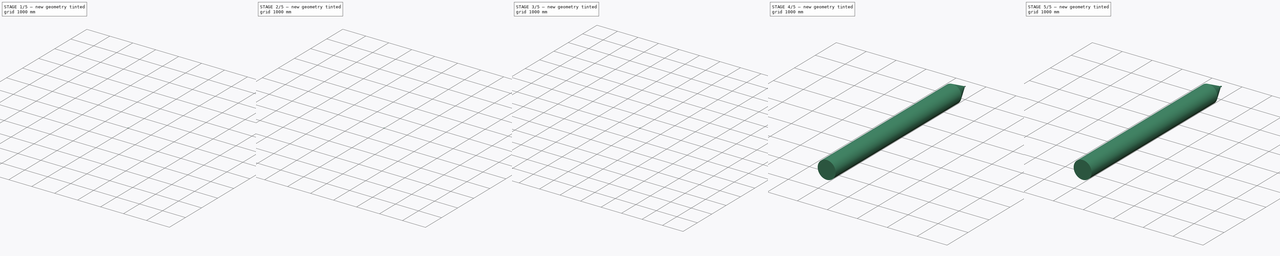
[diagram: build sequence overview — one tinted view per stage of 5, left to right]
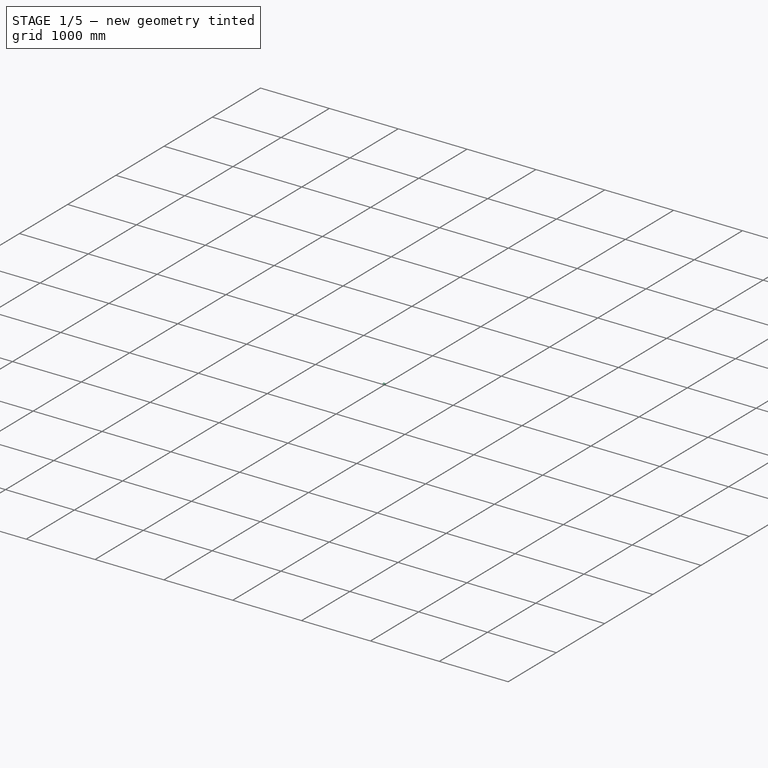
[diagram: stage 1 of 5 — iso view after this stage's code; geometry added in this stage tinted green]
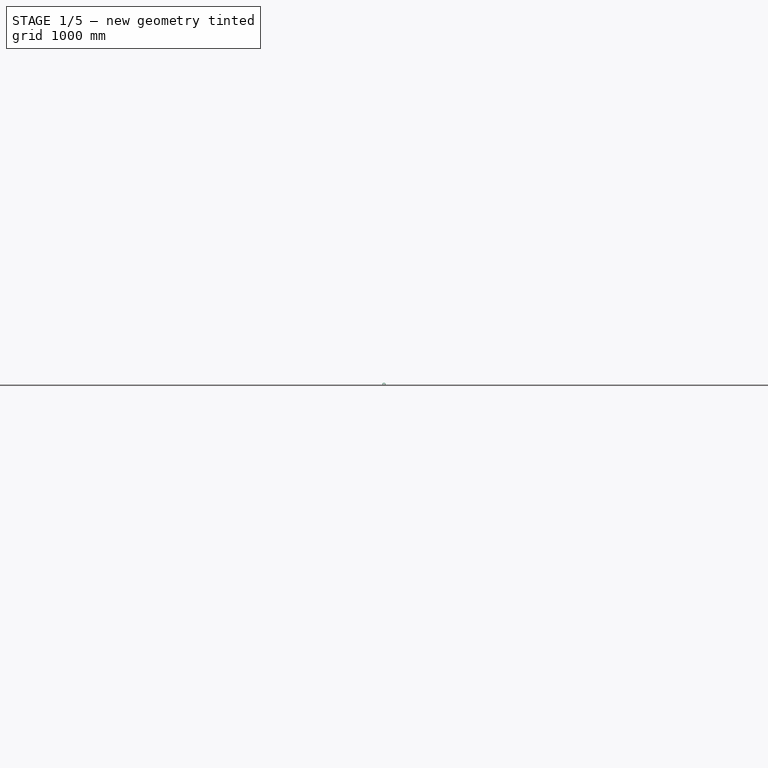
[diagram: stage 1 of 5 — front view after this stage's code; geometry added in this stage tinted green]
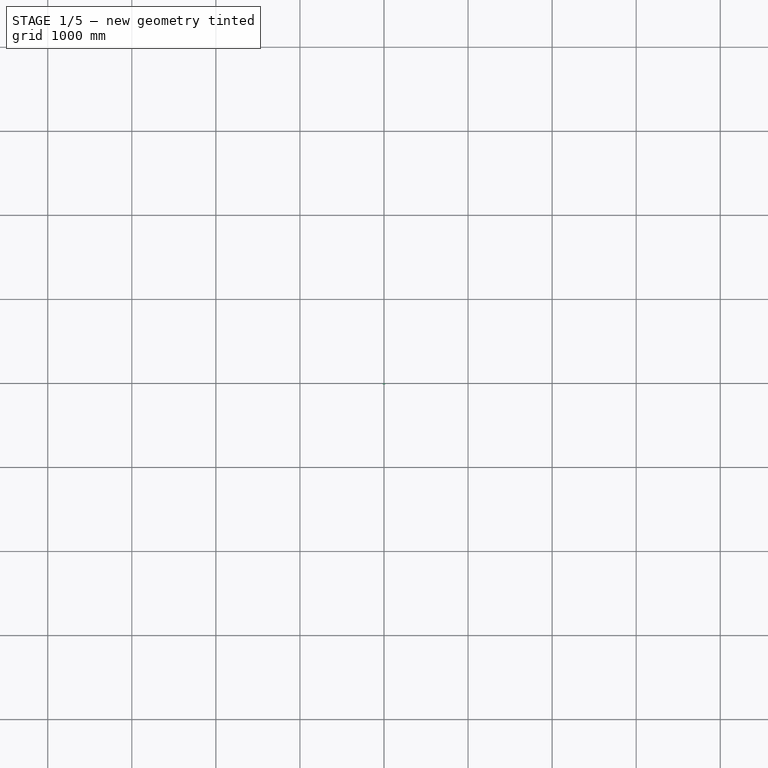
[diagram: stage 1 of 5 — top view after this stage's code; geometry added in this stage tinted green]
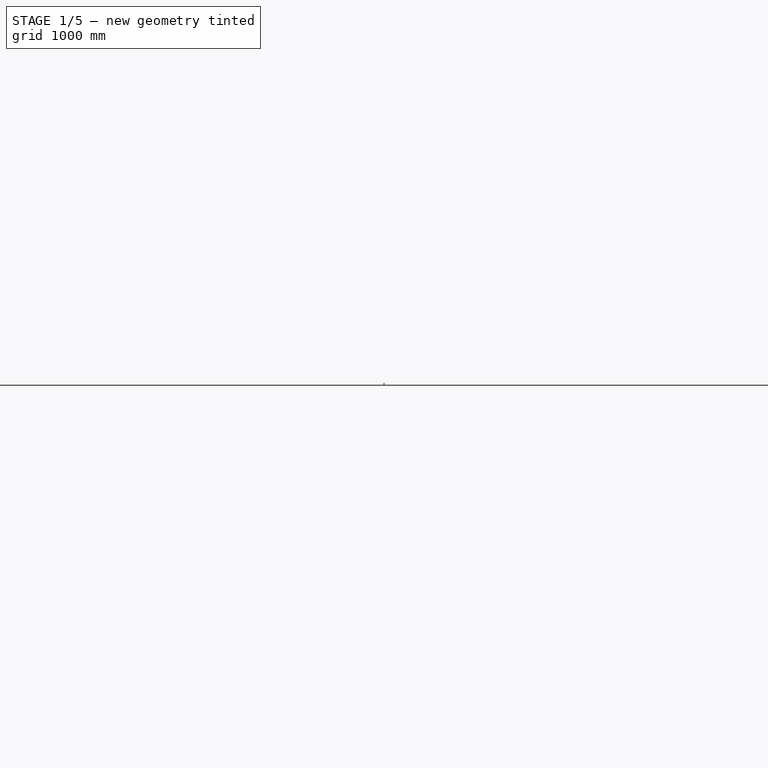
[diagram: stage 1 of 5 — right view after this stage's code; geometry added in this stage tinted green]
FCSTD DOCUMENT  (FreeCAD 1.0R39109 (Git))
Label: capteur_ultrason_maxbotix
License: All rights reserved
LicenseURL: http://en.wikipedia.org/wiki/All_rights_reserved
objects: Sketcher::SketchObject×24, PartDesign::Pocket×15, PartDesign::Body×10, PartDesign::Mirrored×7, Part::FeaturePython×6, PartDesign::Pad×5, PartDesign::MultiTransform×5, App::Part×4, PartDesign::FeatureBase×4, PartDesign::Fillet×3, App::Link×2, PartDesign::PolarPattern×2, PartDesign::Revolution×2, App::DocumentObjectGroup×2, Part::Feature×1, Part::Part2DObjectPython×1, Part::Extrusion×1, Part::RuledSurface×1
note: 179 computed .brp shape members not serialized (recipe doc carries the construction recipe); baked Part::Feature solids carry a one-line shape summary decoded from their .brp

FEATURE [Part::Feature] Part__Feature  label="Maxbotix_us_sensor"
  shape: bbox 20 x 15.25 x 22.2 mm, 42 faces (baked)
FEATURE [Part::Part2DObjectPython] Line  # Draft 2D object (typed FeaturePython)
  Area = 0
  ChamferSize = 0
  Closed = false
  End = (-31,-3.95,-18)
  FilletRadius = 0
  Length = 63
  MakeFace = true
  Placement = pos=(30.6949,-3.33905,3e-15) rot=(0.707107,0.707107,0;3.14159rad)
  Points = (2) [(-0.610949,1.30514,18),(-0.610949,-61.6949,18)]
  Start = (32,-3.95,-18)
  Subdivisions = 0
FEATURE [Part::Extrusion] Extrude
  Base = -> Line
  Dir = (0,0,1)
  DirMode = 0
  FaceMakerClass = Part::FaceMakerBullseye
  FaceMakerMode = 3
  LengthFwd = 40
  LengthRev = 0
  Solid = false
  Symmetric = false
FEATURE [App::Link] Link001  label="anneau001"
  LinkPlacement = pos=(-12,7.62876e-07,0) rot=(0,0,1;3.14159rad)
  LinkedObject = -> Body005
  Placement = pos=(-12,7.62876e-07,0) rot=(0,0,1;3.14159rad)
FEATURE [PartDesign::Mirrored] Mirrored
  MirrorPlane = -> YZ_Plane005
  Placement = pos=(0,0,0) rot=(1,1,1;2.0944rad)
  Suppressed = false
  TransformMode = 0
FEATURE [PartDesign::Mirrored] Mirrored003
  MirrorPlane = -> YZ_Plane009
  Placement = pos=(0,0,0) rot=(1,1,1;2.0944rad)
  Suppressed = false
  TransformMode = 0
FEATURE [PartDesign::Mirrored] Mirrored004
  MirrorPlane = -> YZ_Plane005
  Placement = pos=(0,0,0) rot=(1,1,1;2.0944rad)
  Suppressed = false
  TransformMode = 0
FEATURE [PartDesign::Mirrored] Mirrored005
  MirrorPlane = -> YZ_Plane007
  Placement = pos=(0,0,0) rot=(1,0,0;1.5708rad)
  Suppressed = false
  TransformMode = 0
FEATURE [PartDesign::PolarPattern] PolarPattern
  Angle = 180
  Axis = -> X_Axis005
  Mode = 0
  Occurrences = 13
  Offset = 120
  Placement = pos=(0,0,0) rot=(1,1,1;2.0944rad)
  Suppressed = false
  TransformMode = 0
FEATURE [Sketcher::SketchObject] Sketch004
  ArcFitTolerance = 0
  AttachmentSupport = -> [YZ_Plane005]
  FullyConstrained = true
  MakeInternals = false
  MapMode = 5
  Placement = pos=(0,0,0) rot=(0.57735,0.57735,0.57735;2.0944rad)
  sketch-geometry (2):
    g0: ArcOfCircle CenterX=0 CenterY=0 CenterZ=0 NormalX=0 NormalY=0 NormalZ=1 AngleXU=0 Radius=13 StartAngle=1.5708 EndAngle=4.71239
    g1: LineSegment StartX=-2.4e-15 StartY=13 StartZ=0 EndX=-2.4e-15 EndY=-13 EndZ=0
  constraints (6):
    c: Diameter(g0) = 26
    c: Coincident(g0,g1)
    c: PointOnObject(g0,g-2)
    c: Vertical(g1)
    c: Coincident(g1,g0)
    c: Coincident(g0,g-1)
FEATURE [PartDesign::Pad] Pad002
  Direction = (1,0,0)
  Length = 12
  Length2 = 10
  Placement = pos=(0,0,0) rot=(1,1,1;2.0944rad)
  Profile = -> Sketch004
  ReferenceAxis = -> Sketch004 [N_Axis]
  Suppressed = false
  Type = 0
FEATURE [Sketcher::SketchObject] Sketch005
  ArcFitTolerance = 0
  AttachmentOffset = pos=(0,0,12) rot=(0,0,1;0rad)
  AttachmentSupport = -> [YZ_Plane005]
  FullyConstrained = true
  MakeInternals = false
  MapMode = 5
  Placement = pos=(12,0,0) rot=(0.57735,0.57735,0.57735;2.0944rad)
  expr: .AttachmentOffset.Base.z = <<Pad002>>.Length
  sketch-geometry (2):
    g0: ArcOfCircle CenterX=0 CenterY=0 CenterZ=0 NormalX=0 NormalY=0 NormalZ=1 AngleXU=0 Radius=8.5 StartAngle=1.5708 EndAngle=4.71239
    g1: LineSegment StartX=1.0367e-12 StartY=8.5 StartZ=0 EndX=1.0367e-12 EndY=-8.5 EndZ=0
  constraints (6):
    c: Coincident(g0,g-1)
    c: Vertical(g1)
    c: Coincident(g0,g1)
    c: Coincident(g0,g1)
    c: PointOnObject(g0,g-2)
    c: Diameter(g0) = 17
FEATURE [PartDesign::Pad] Pad003
  BaseFeature = -> Pad002
  Direction = (1,0,0)
  Length = 5
  Length2 = 10
  Placement = pos=(0,0,0) rot=(1,1,1;2.0944rad)
  Profile = -> Sketch005
  ReferenceAxis = -> Sketch005 [N_Axis]
  Suppressed = false
  Type = 0
FEATURE [Sketcher::SketchObject] Sketch006
  ArcFitTolerance = 0
  AttachmentOffset = pos=(0,1,0) rot=(0,0,1;0rad)
  AttachmentSupport = -> [YZ_Plane005]
  FullyConstrained = true
  MakeInternals = false
  MapMode = 5
  Placement = pos=(0,0,1) rot=(0.57735,-0.57735,-0.57735;2.0944rad)
  expr: Constraints[10] = 10 + 0.3
  expr: Constraints[9] = 1.65 + 0.3 + 2
  sketch-geometry (4):
    g0: LineSegment StartX=0 StartY=10.3 StartZ=0 EndX=3.95 EndY=10.3 EndZ=0
    g1: LineSegment StartX=3.95 StartY=10.3 StartZ=0 EndX=3.95 EndY=-10.3 EndZ=0
    g2: LineSegment StartX=3.95 StartY=-10.3 StartZ=0 EndX=0 EndY=-10.3 EndZ=0
    g3: LineSegment StartX=0 StartY=-10.3 StartZ=0 EndX=0 EndY=10.3 EndZ=0
  constraints (11):
    c: Coincident(g0,g1)
    c: Coincident(g1,g2)
    c: Coincident(g2,g3)
    c: Coincident(g3,g0)
    c: Horizontal(g0)
    c: Horizontal(g2)
    c: Vertical(g1)
    c: Vertical(g3)
    c: Symmetric(g0,g2,g-1)
    c: DistanceX(g0) = 3.95
    c: DistanceY(g0) = 10.3
FEATURE [PartDesign::Pocket] Pocket001
  BaseFeature = -> Pad003
  Direction = (1,0,0)
  Length = 11.4
  Length2 = 5
  Placement = pos=(0,0,0) rot=(1,1,1;2.0944rad)
  Profile = -> Sketch006
  ReferenceAxis = -> Sketch006 [N_Axis]
  Suppressed = false
  Type = 0
FEATURE [Sketcher::SketchObject] Sketch007
  ArcFitTolerance = 0
  AttachmentSupport = -> [XZ_Plane005]
  FullyConstrained = true
  MakeInternals = false
  MapMode = 5
  Placement = pos=(0,0,0) rot=(1,0,0;1.5708rad)
  sketch-geometry (1):
    g0: Circle CenterX=0 CenterY=0 CenterZ=0 NormalX=0 NormalY=0 NormalZ=1 AngleXU=0 Radius=8.45
  constraints (2):
    c: Coincident(g0,g-1)
    c: Diameter(g0) = 16.9
FEATURE [PartDesign::Pocket] Pocket002
  BaseFeature = -> Pocket001
  Direction = (0,1,-2e-16)
  Length = 5
  Length2 = 5
  Placement = pos=(0,0,0) rot=(1,1,1;2.0944rad)
  Profile = -> Sketch007
  ReferenceAxis = -> Sketch007 [N_Axis]
  Reversed = true
  Suppressed = false
  Type = 1
FEATURE [Sketcher::SketchObject] Sketch009
  ArcFitTolerance = 0
  AttachmentSupport = -> [YZ_Plane005]
  FullyConstrained = true
  MakeInternals = false
  MapMode = 5
  Placement = pos=(0,0,0) rot=(0.57735,-0.57735,-0.57735;2.0944rad)
  expr: Constraints[3] = 1.52 + 2
  sketch-geometry (2):
    g0: ArcOfCircle CenterX=3.52 CenterY=9.7 CenterZ=0 NormalX=0 NormalY=0 NormalZ=1 AngleXU=0 Radius=1.6 StartAngle=4.71239 EndAngle=7.85398
    g1: LineSegment StartX=3.52 StartY=11.3 StartZ=0 EndX=3.52 EndY=8.1 EndZ=0
  constraints (7):
    c: Coincident(g1,g0)
    c: Coincident(g1,g0)
    c: Vertical(g1)
    c: DistanceX(g0) = 3.52
    c: DistanceY(g0) = 9.7
    c: Diameter(g0) = 3.2
    c: Vertical(g0,g0)
FEATURE [PartDesign::Pocket] Pocket004
  BaseFeature = -> Pocket002
  Direction = (1,0,0)
  Length = 11
  Length2 = 5
  Placement = pos=(0,0,0) rot=(1,1,1;2.0944rad)
  Profile = -> Sketch009
  ReferenceAxis = -> Sketch009 [N_Axis]
  Suppressed = false
  Type = 0
FEATURE [PartDesign::MultiTransform] MultiTransform
  BaseFeature = -> Pocket004
  Originals = -> [Pad002,Pad003,Pocket001,Pocket002,Pocket004]
  Placement = pos=(0,0,0) rot=(1,1,1;2.0944rad)
  Refine = true
  Suppressed = false
  TransformMode = 0
  Transformations = -> [Mirrored]
FEATURE [Sketcher::SketchObject] Sketch016
  ArcFitTolerance = 0
  AttachmentSupport = -> [XZ_Plane007]
  FullyConstrained = true
  MakeInternals = false
  MapMode = 5
  Placement = pos=(0,0,0) rot=(0,0.707107,0.707107;3.14159rad)
  sketch-geometry (6):
    g0: LineSegment StartX=-9.8 StartY=8.5 StartZ=0 EndX=0 EndY=8.5 EndZ=0
    g1: LineSegment StartX=0 StartY=8.5 StartZ=0 EndX=0 EndY=13 EndZ=0
    g2: LineSegment StartX=-6 StartY=13 StartZ=0 EndX=0 EndY=13 EndZ=0
    g3: LineSegment StartX=-9.8 StartY=11 StartZ=0 EndX=-6 EndY=11 EndZ=0
    g4: ArcOfCircle CenterX=-6 CenterY=12 CenterZ=0 NormalX=0 NormalY=0 NormalZ=1 AngleXU=0 Radius=1 StartAngle=4.71239 EndAngle=7.85398
    g5: ArcOfCircle CenterX=-9.8 CenterY=9.75 CenterZ=0 NormalX=0 NormalY=0 NormalZ=1 AngleXU=0 Radius=1.25 StartAngle=1.5708 EndAngle=4.71239
  constraints (18):
    c: Coincident(g0,g1)
    c: Horizontal(g0)
    c: Vertical(g1)
    c: PointOnObject(g1,g-2)
    c: Horizontal(g2)
    c: Coincident(g1,g2)
    c: DistanceY(g1) = 13
    c: DistanceX(g0,g0) = 9.8
    c: Horizontal(g3)
    c: Coincident(g4,g2)
    c: Tangent(g4,g3) = -1.5708
    c: Vertical(g4,g2)
    c: Diameter(g4) = 2
    c: DistanceX(g2,g2) = 6
    c: Coincident(g5,g0)
    c: Tangent(g5,g3) = 1.5708
    c: Vertical(g5,g0)
    c: Diameter(g5) = 2.5
FEATURE [Sketcher::SketchObject] Sketch020
  ArcFitTolerance = 0
  AttachmentOffset = pos=(0,0,-17) rot=(0,0,1;0rad)
  AttachmentSupport = -> [YZ_Plane005]
  FullyConstrained = true
  MakeInternals = false
  MapMode = 5
  Placement = pos=(-17,0,0) rot=(0.57735,0.57735,0.57735;2.0944rad)
  sketch-geometry (6):
    g0: LineSegment [constr] StartX=0 StartY=0 StartZ=0 EndX=0 EndY=6.5 EndZ=0
    g1: LineSegment StartX=0.3 StartY=8.5 StartZ=0 EndX=0.3 EndY=6.5 EndZ=0
    g2: LineSegment StartX=0.3 StartY=6.5 StartZ=0 EndX=-0.3 EndY=6.5 EndZ=0
    g3: LineSegment StartX=-0.3 StartY=6.5 StartZ=0 EndX=-0.3 EndY=8.5 EndZ=0
    g4: ArcOfCircle CenterX=0 CenterY=0 CenterZ=0 NormalX=0 NormalY=0 NormalZ=1 AngleXU=0 Radius=8.50529 StartAngle=1.53552 EndAngle=1.60608
    g5: LineSegment [constr] StartX=0.3 StartY=8.5 StartZ=0 EndX=-0.3 EndY=8.5 EndZ=0
  constraints (16):
    c: Coincident(g0,g-1)
    c: Coincident(g1,g2)
    c: Coincident(g2,g3)
    c: Coincident(g4,g3)
    c: Coincident(g4,g1)
    c: Perpendicular(g0,g2)
    c: Symmetric(g1,g2,g0)
    c: Perpendicular(g2,g3)
    c: Parallel(g1,g3)
    c: Coincident(g5,g1)
    c: Coincident(g5,g3)
    c: Coincident(g4,g0)
    c: Distance(g2) = 0.6
    c: Distance(g1) = 2
    c: Distance(g0) = 6.5
    c: Vertical(g0)
FEATURE [PartDesign::Pocket] Pocket008
  BaseFeature = -> MultiTransform
  Direction = (-1,0,0)
  Length = 0.3
  Length2 = 5
  Placement = pos=(0,0,0) rot=(1,1,1;2.0944rad)
  Profile = -> Sketch020
  ReferenceAxis = -> Sketch020 [N_Axis]
  Reversed = true
  Suppressed = false
  Type = 0
FEATURE [PartDesign::MultiTransform] MultiTransform003
  BaseFeature = -> Pocket008
  Originals = -> [Pocket008]
  Placement = pos=(0,0,0) rot=(1,1,1;2.0944rad)
  Suppressed = false
  TransformMode = 0
  Transformations = -> [PolarPattern,Mirrored004]
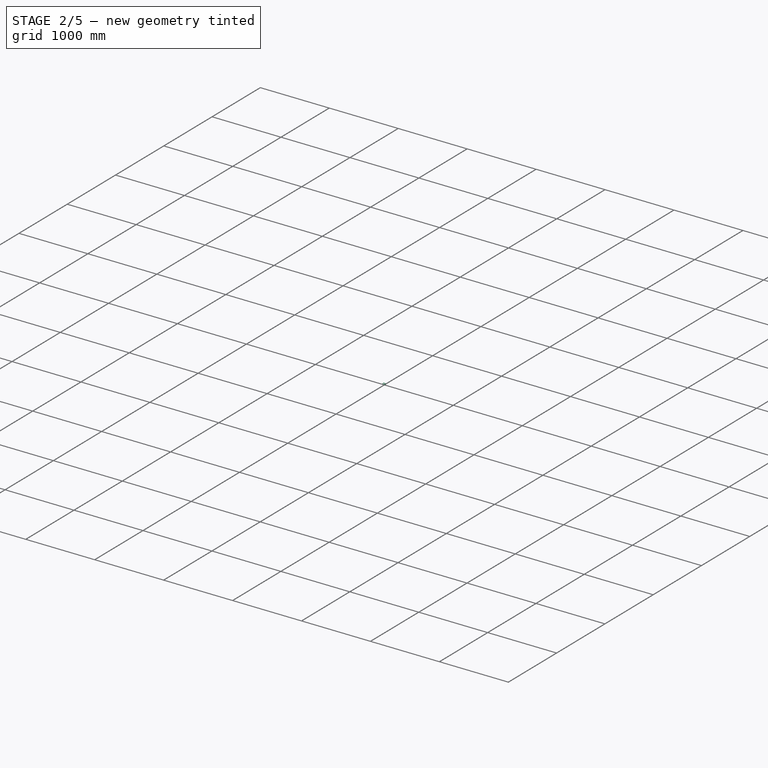
[diagram: stage 2 of 5 — iso view after this stage's code; geometry added in this stage tinted green]
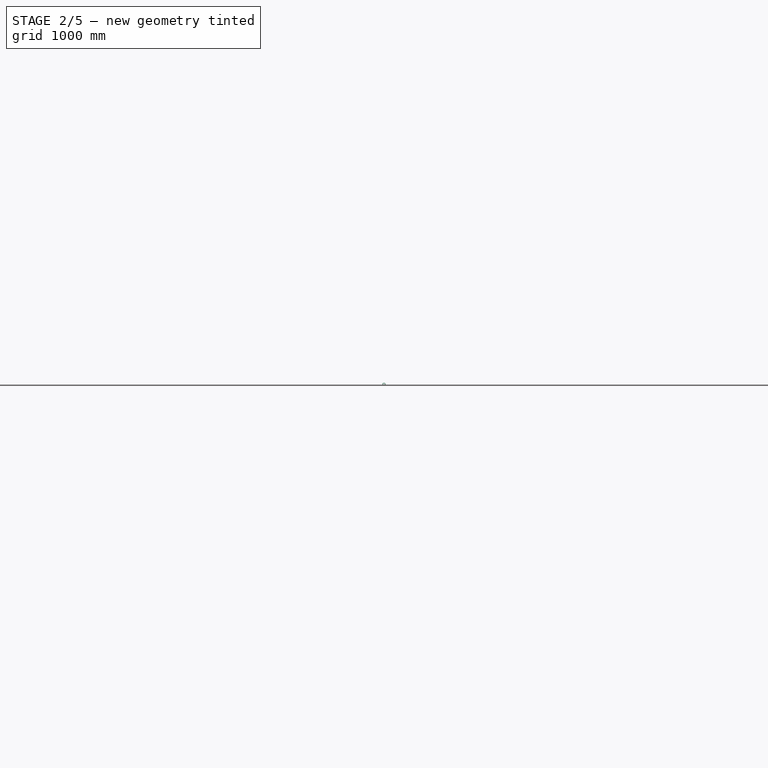
[diagram: stage 2 of 5 — front view after this stage's code; geometry added in this stage tinted green]
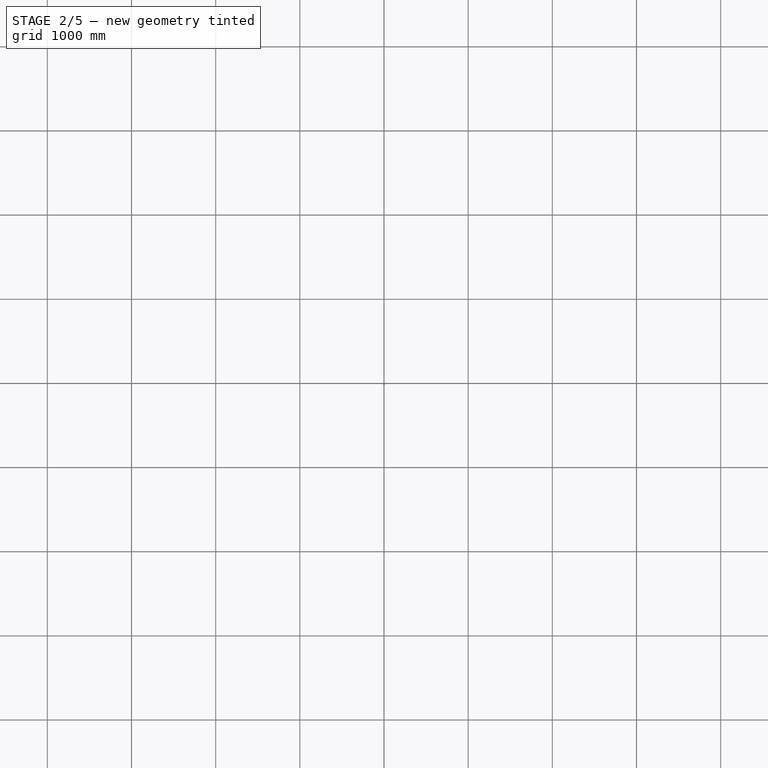
[diagram: stage 2 of 5 — top view after this stage's code; geometry added in this stage tinted green]
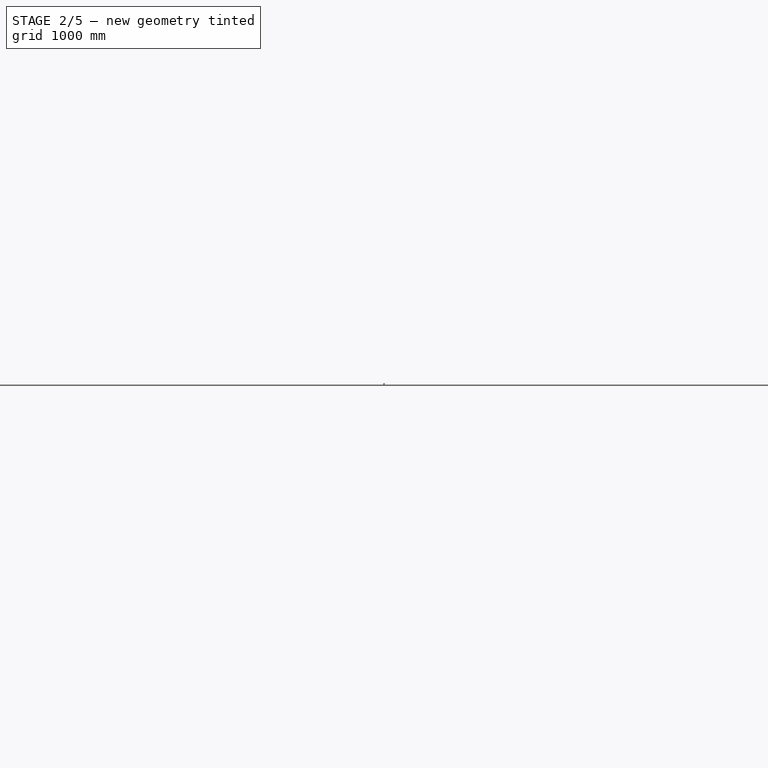
[diagram: stage 2 of 5 — right view after this stage's code; geometry added in this stage tinted green]
FEATURE [PartDesign::Body] Body006  label="base"
  AllowCompound = false
  Group = -> [Sketch012,Pad005,Sketch013,Pad006,Sketch014,Pocket005,Sketch015,Pocket006,MultiTransform002,Mirrored002,Mirrored003,Sketch023,Pocket011,Mirrored006]
  Origin = -> Origin009
  Tip = -> Mirrored006
FEATURE [App::Link] Link  label="capteur_us_maxbotix001"
  LinkPlacement = pos=(0,0,1) rot=(0,1,0;1.5708rad)
  LinkedObject = -> Part
  Placement = pos=(0,0,1) rot=(0,1,0;1.5708rad)
FEATURE [PartDesign::Fillet] Fillet
  Base = -> MultiTransform003 [Edge78,Edge79]
  BaseFeature = -> MultiTransform003
  Placement = pos=(0,0,0) rot=(1,1,1;2.0944rad)
  Radius = 2
  SupportTransform = false
  Suppressed = false
  UseAllEdges = false
FEATURE [PartDesign::Body] Body003  label="avant"
  AllowCompound = false
  Group = -> [Sketch004,Pad002,Sketch005,Pad003,Sketch006,Pocket001,Sketch007,Pocket002,Sketch009,Pocket004,MultiTransform,Mirrored,Sketch020,Pocket008,MultiTransform003,PolarPattern,Mirrored004,Fillet]
  Origin = -> Origin005
  Tip = -> Fillet
FEATURE [Part::FeaturePython] Slice  # WARN: FeaturePython — macro-defined, semantics opaque (R4)
  Base = -> Body003
  Mode = 1
  Tolerance = 0
  Tools = -> [Extrude]
FEATURE [Part::FeaturePython] Slice_child0  label="av_1"  # WARN: FeaturePython — macro-defined, semantics opaque (R4)
  Base = -> Slice
  FilterType = 1
  Invert = false
  OverrideMaxVal = 0
  WindowFrom = 80
  WindowTo = 100
  items = 0
FEATURE [Part::FeaturePython] Slice_child1  label="av_2"  # WARN: FeaturePython — macro-defined, semantics opaque (R4)
  Base = -> Slice
  FilterType = 1
  Invert = false
  OverrideMaxVal = 0
  WindowFrom = 80
  WindowTo = 100
  items = 1
FEATURE [PartDesign::Body] Body009  label="ar_2_min"
  AllowCompound = false
  Group = -> [Clone001,Sketch028,Pocket014]
  Origin = -> Origin015
  Tip = -> Pocket014
FEATURE [App::DocumentObjectGroup] GrExplode_Slice001  label="decoupe_ar"
  Group = -> [Slice001_child0,Slice001_child1,Body008,Body009]
FEATURE [PartDesign::FeatureBase] Clone002
  BaseFeature = -> Slice_child0
  Suppressed = false
FEATURE [PartDesign::FeatureBase] Clone003
  BaseFeature = -> Slice_child1
  Suppressed = false
FEATURE [Sketcher::SketchObject] Sketch029
  ArcFitTolerance = 0
  AttachmentSupport = -> [XZ_Plane016]
  FullyConstrained = false
  MakeInternals = false
  MapMode = 5
  Placement = pos=(0,0,0) rot=(1,0,0;1.5708rad)
  sketch-geometry (4):
    g0: LineSegment StartX=-20.7179 StartY=16.2784 StartZ=0 EndX=21.892 EndY=16.2784 EndZ=0
    g1: LineSegment StartX=21.892 StartY=16.2784 StartZ=0 EndX=21.892 EndY=-18.8561 EndZ=0
    g2: LineSegment StartX=21.892 StartY=-18.8561 StartZ=0 EndX=-20.7179 EndY=-18.8561 EndZ=0
    g3: LineSegment StartX=-20.7179 StartY=-18.8561 StartZ=0 EndX=-20.7179 EndY=16.2784 EndZ=0
  constraints (8):
    c: Coincident(g0,g1)
    c: Coincident(g1,g2)
    c: Coincident(g2,g3)
    c: Coincident(g3,g0)
    c: Horizontal(g0)
    c: Horizontal(g2)
    c: Vertical(g1)
    c: Vertical(g3)
FEATURE [PartDesign::Pocket] Pocket015
  BaseFeature = -> Clone002
  Direction = (0,1,-2e-16)
  Length = 0.2
  Length2 = 5
  Profile = -> Sketch029
  ReferenceAxis = -> Sketch029 [N_Axis]
  Reversed = true
  Suppressed = false
  Type = 0
FEATURE [PartDesign::Body] Body010  label="av_1_min"
  AllowCompound = false
  Group = -> [Clone002,Sketch029,Pocket015]
  Origin = -> Origin016
  Tip = -> Pocket015
FEATURE [Sketcher::SketchObject] Sketch030
  ArcFitTolerance = 0
  AttachmentOffset = pos=(0,0,3.95) rot=(0,0,1;0rad)
  AttachmentSupport = -> [XZ_Plane017]
  FullyConstrained = false
  MakeInternals = false
  MapMode = 5
  Placement = pos=(0,-3.95,9e-16) rot=(1,0,0;1.5708rad)
  sketch-geometry (4):
    g0: LineSegment StartX=-21.1746 StartY=15.0844 StartZ=0 EndX=22.9304 EndY=15.0844 EndZ=0
    g1: LineSegment StartX=22.9304 StartY=15.0844 StartZ=0 EndX=22.9304 EndY=-17.2468 EndZ=0
    g2: LineSegment StartX=22.9304 StartY=-17.2468 StartZ=0 EndX=-21.1746 EndY=-17.2468 EndZ=0
    g3: LineSegment StartX=-21.1746 StartY=-17.2468 StartZ=0 EndX=-21.1746 EndY=15.0844 EndZ=0
  constraints (8):
    c: Coincident(g0,g1)
    c: Coincident(g1,g2)
    c: Coincident(g2,g3)
    c: Coincident(g3,g0)
    c: Horizontal(g0)
    c: Horizontal(g2)
    c: Vertical(g1)
    c: Vertical(g3)
FEATURE [PartDesign::Pocket] Pocket016
  BaseFeature = -> Clone003
  Direction = (0,1,-2e-16)
  Length = 0.2
  Length2 = 5
  Profile = -> Sketch030
  ReferenceAxis = -> Sketch030 [N_Axis]
  Reversed = true
  Suppressed = false
  Type = 0
FEATURE [PartDesign::Body] Body011  label="av_2_min"
  AllowCompound = false
  Group = -> [Clone003,Sketch030,Pocket016]
  Origin = -> Origin017
  Tip = -> Pocket016
FEATURE [App::DocumentObjectGroup] GrExplode_Slice  label="decoupe_av"
  Group = -> [Slice_child0,Slice_child1,Body010,Body011]
FEATURE [PartDesign::Body] Body012  label="Corps001"
  AllowCompound = false
  Origin = -> Origin018
FEATURE [App::Part] Part003  label="partie_mobile"
  Group = -> [Body003,Body004,Body005,Link001,Line,Extrude,Link,Sketch026,Ruled_Surface,Body012]
  Origin = -> Origin010
  Placement = pos=(0,0,0) rot=(-1,0,0;3.14159rad)
FEATURE [App::Part] Part002  label="support_2_axes_maxbotix"
  Group = -> [Body006,Part003]
  Origin = -> Origin006
  Placement = pos=(0,-4e-16,-2) rot=(0,-0.707107,0.707107;3.14159rad)
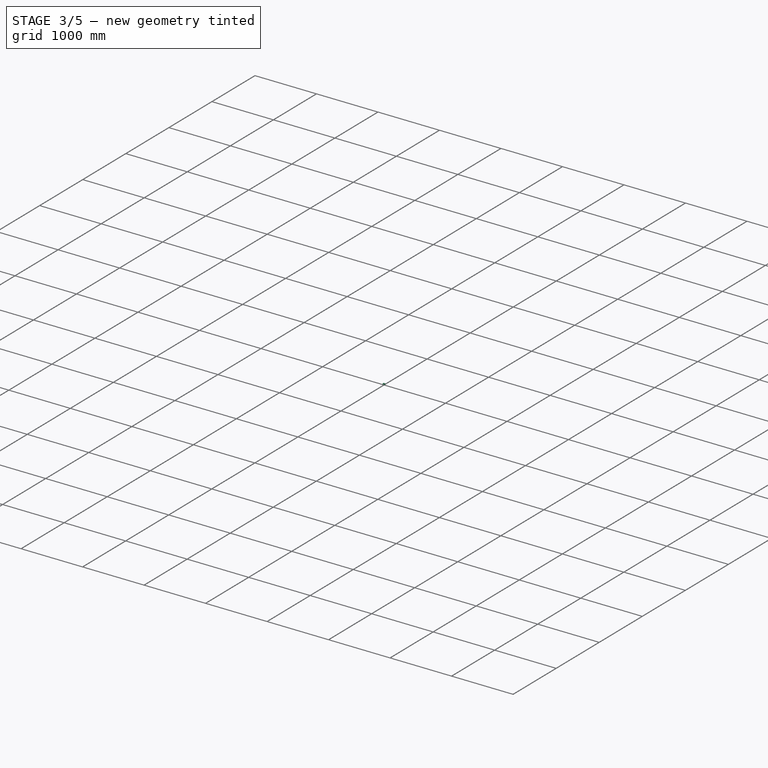
[diagram: stage 3 of 5 — iso view after this stage's code; geometry added in this stage tinted green]
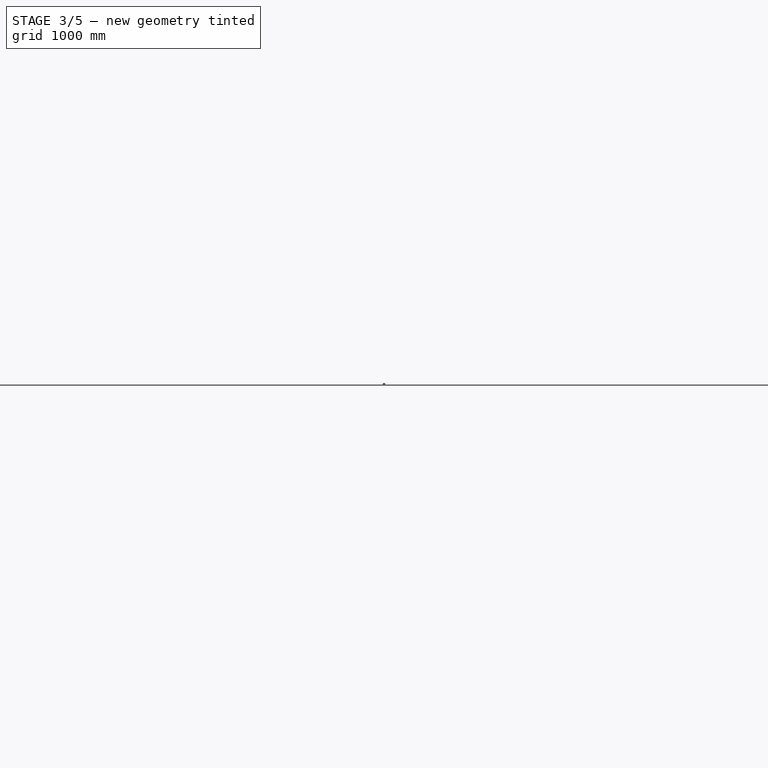
[diagram: stage 3 of 5 — front view after this stage's code; geometry added in this stage tinted green]
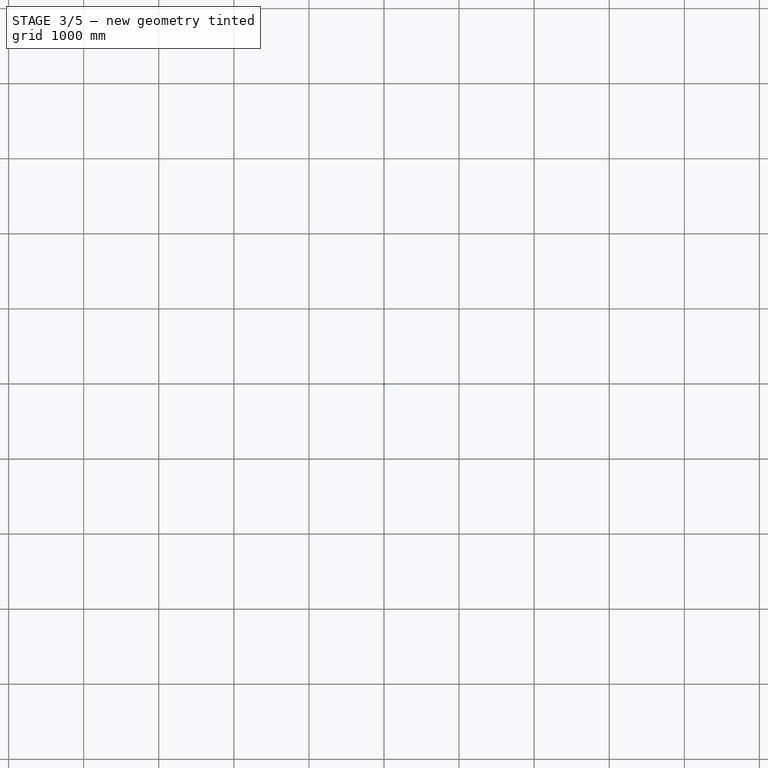
[diagram: stage 3 of 5 — top view after this stage's code; geometry added in this stage tinted green]
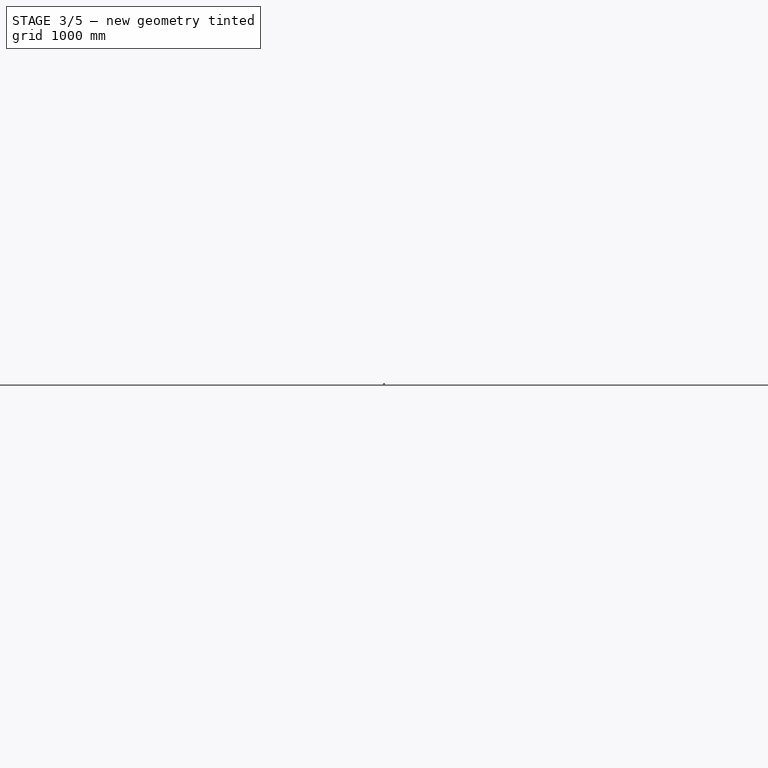
[diagram: stage 3 of 5 — right view after this stage's code; geometry added in this stage tinted green]
FEATURE [Sketcher::SketchObject] Sketch010
  ArcFitTolerance = 0
  AttachmentSupport = -> [XZ_Plane007]
  FullyConstrained = true
  MakeInternals = false
  MapMode = 5
  Placement = pos=(0,0,0) rot=(1,0,0;1.5708rad)
  sketch-geometry (6):
    g0: LineSegment StartX=0 StartY=13 StartZ=0 EndX=12 EndY=13 EndZ=0
    g1: LineSegment StartX=0 StartY=0 StartZ=0 EndX=0 EndY=13 EndZ=0
    g2: LineSegment StartX=17 StartY=0 StartZ=0 EndX=17 EndY=8.5 EndZ=0
    g3: LineSegment StartX=17 StartY=8.5 StartZ=0 EndX=12 EndY=8.5 EndZ=0
    g4: LineSegment StartX=12 StartY=13 StartZ=0 EndX=12 EndY=8.5 EndZ=0
    g5: LineSegment StartX=0 StartY=0 StartZ=0 EndX=17 EndY=0 EndZ=0
  constraints (17):
    c: Coincident(g1,g0)
    c: Horizontal(g0)
    c: PointOnObject(g0,g-2)
    c: Coincident(g2,g3)
    c: Horizontal(g3)
    c: Vertical(g2)
    c: Coincident(g4,g0)
    c: Coincident(g4,g3)
    c: Vertical(g4)
    c: DistanceX(g0,g0) = 12
    c: DistanceX(g3,g3) = 5
    c: DistanceY(g4,g4) = 4.5
    c: Coincident(g5,g-1)
    c: Horizontal(g5)
    c: Coincident(g2,g5)
    c: DistanceY(g1,g1) = 13
    c: Coincident(g1,g5)
FEATURE [PartDesign::Mirrored] Mirrored001
  MirrorPlane = -> Sketch010 [V_Axis]
  Placement = pos=(0,0,0) rot=(1,0,0;1.5708rad)
  Suppressed = false
  TransformMode = 0
FEATURE [PartDesign::Revolution] Revolution001
  Angle = 180
  Angle2 = 60
  Axis = (1,0,0)
  Base = (0,0,0)
  Placement = pos=(0,0,0) rot=(1,0,0;1.5708rad)
  Profile = -> Sketch010
  ReferenceAxis = -> Sketch010 [H_Axis]
  Reversed = true
  Suppressed = false
  Type = 0
FEATURE [PartDesign::MultiTransform] MultiTransform001
  BaseFeature = -> Revolution001
  Originals = -> [Revolution001]
  Placement = pos=(0,0,0) rot=(1,0,0;1.5708rad)
  Refine = true
  Suppressed = false
  TransformMode = 0
  Transformations = -> [Mirrored001]
FEATURE [Sketcher::SketchObject] Sketch021
  ArcFitTolerance = 0
  AttachmentOffset = pos=(0,0,7) rot=(0,0,1;0rad)
  AttachmentSupport = -> [XZ_Plane007]
  FullyConstrained = true
  MakeInternals = false
  MapMode = 5
  Placement = pos=(0,7,-1.6e-15) rot=(0,0.707107,0.707107;3.14159rad)
  sketch-geometry (4):
    g0: LineSegment StartX=-10 StartY=15 StartZ=0 EndX=10 EndY=15 EndZ=0
    g1: LineSegment StartX=10 StartY=15 StartZ=0 EndX=10 EndY=-15 EndZ=0
    g2: LineSegment StartX=10 StartY=-15 StartZ=0 EndX=-10 EndY=-15 EndZ=0
    g3: LineSegment StartX=-10 StartY=-15 StartZ=0 EndX=-10 EndY=15 EndZ=0
  constraints (11):
    c: Coincident(g0,g1)
    c: Coincident(g1,g2)
    c: Coincident(g2,g3)
    c: Coincident(g3,g0)
    c: Horizontal(g0)
    c: Horizontal(g2)
    c: Vertical(g1)
    c: Vertical(g3)
    c: Symmetric(g1,g0,g-1)
    c: DistanceY(g1,g1) = 30
    c: DistanceX(g0,g0) = 20
FEATURE [PartDesign::Pocket] Pocket009
  BaseFeature = -> MultiTransform001
  Direction = (0,-1,2e-16)
  Length = 5
  Length2 = 5
  Placement = pos=(0,0,0) rot=(1,0,0;1.5708rad)
  Profile = -> Sketch021
  ReferenceAxis = -> Sketch021 [N_Axis]
  Reversed = true
  Suppressed = false
  Type = 1
FEATURE [Sketcher::SketchObject] Sketch022
  ArcFitTolerance = 0
  AttachmentOffset = pos=(0,0,17) rot=(0,0,1;0rad)
  AttachmentSupport = -> [YZ_Plane007]
  FullyConstrained = true
  MakeInternals = false
  MapMode = 5
  Placement = pos=(17,0,0) rot=(0.57735,0.57735,0.57735;2.0944rad)
  sketch-geometry (4):
    g0: LineSegment StartX=-0.3 StartY=6.5 StartZ=0 EndX=0.3 EndY=6.5 EndZ=0
    g1: LineSegment StartX=0.3 StartY=6.5 StartZ=0 EndX=0.3 EndY=8.5 EndZ=0
    g2: LineSegment StartX=0.3 StartY=8.5 StartZ=0 EndX=-0.3 EndY=8.5 EndZ=0
    g3: LineSegment StartX=-0.3 StartY=8.5 StartZ=0 EndX=-0.3 EndY=6.5 EndZ=0
  constraints (11):
    c: Coincident(g0,g1)
    c: Coincident(g1,g2)
    c: Coincident(g2,g3)
    c: Coincident(g3,g0)
    c: Horizontal(g2)
    c: Vertical(g1)
    c: Vertical(g3)
    c: Symmetric(g0,g0,g-2)
    c: DistanceY(g-1,g0) = 6.5
    c: DistanceY(g3,g3) = 2
    c: DistanceX(g2,g2) = 0.6
FEATURE [PartDesign::Pocket] Pocket010
  BaseFeature = -> Pocket009
  Direction = (-1,0,0)
  Length = 0.3
  Length2 = 5
  Placement = pos=(0,0,0) rot=(1,0,0;1.5708rad)
  Profile = -> Sketch022
  ReferenceAxis = -> Sketch022 [N_Axis]
  Suppressed = false
  Type = 0
FEATURE [PartDesign::PolarPattern] PolarPattern001
  Angle = 180
  Axis = -> Sketch022 [N_Axis]
  Mode = 0
  Occurrences = 13
  Offset = 120
  Placement = pos=(0,0,0) rot=(1,0,0;1.5708rad)
  Reversed = true
  Suppressed = false
  TransformMode = 0
FEATURE [PartDesign::MultiTransform] MultiTransform004
  BaseFeature = -> Pocket010
  Originals = -> [Pocket010]
  Placement = pos=(0,0,0) rot=(1,0,0;1.5708rad)
  Suppressed = false
  TransformMode = 0
  Transformations = -> [PolarPattern001,Mirrored005]
FEATURE [PartDesign::Body] Body  label="Corps"
  AllowCompound = false
  Group = -> [Sketch,Revolution]
  Origin = -> Origin011
  Tip = -> Revolution
FEATURE [App::Part] Part004  label="Beam_pattern"
  Group = -> [Body]
  Origin = -> Origin012
  Placement = pos=(1,-15,0) rot=(0,0,1;0rad)
FEATURE [App::Part] Part  label="capteur_us_maxbotix"
  Group = -> [Part__Feature,Part004]
  Origin = -> Origin
FEATURE [Sketcher::SketchObject] Sketch024
  ArcFitTolerance = 0
  AttachmentOffset = pos=(0,1,-5) rot=(0,0,1;0rad)
  AttachmentSupport = -> [XZ_Plane007]
  FullyConstrained = true
  MakeInternals = false
  MapMode = 5
  Placement = pos=(0,5,1) rot=(1,0,0;1.5708rad)
  sketch-geometry (4):
    g0: LineSegment StartX=-11.4 StartY=10.3 StartZ=0 EndX=11.4 EndY=10.3 EndZ=0
    g1: LineSegment StartX=11.4 StartY=10.3 StartZ=0 EndX=11.4 EndY=-10.3 EndZ=0
    g2: LineSegment StartX=11.4 StartY=-10.3 StartZ=0 EndX=-11.4 EndY=-10.3 EndZ=0
    g3: LineSegment StartX=-11.4 StartY=-10.3 StartZ=0 EndX=-11.4 EndY=10.3 EndZ=0
  constraints (11):
    c: Coincident(g0,g1)
    c: Coincident(g1,g2)
    c: Coincident(g2,g3)
    c: Coincident(g3,g0)
    c: Horizontal(g0)
    c: Horizontal(g2)
    c: Vertical(g1)
    c: Vertical(g3)
    c: DistanceY(g1,g1) = 20.6
    c: DistanceX(g0,g0) = 22.8
    c: Symmetric(g0,g2,g-1)
FEATURE [PartDesign::Pocket] Pocket
  BaseFeature = -> MultiTransform004
  Direction = (0,1,-2e-16)
  Length = 5
  Length2 = 5
  Placement = pos=(0,0,0) rot=(1,0,0;1.5708rad)
  Profile = -> Sketch024
  ReferenceAxis = -> Sketch024 [N_Axis]
  Reversed = true
  Suppressed = false
  Type = 0
FEATURE [Sketcher::SketchObject] Sketch025
  ArcFitTolerance = 0
  AttachmentSupport = -> [XY_Plane007]
  FullyConstrained = true
  MakeInternals = false
  MapMode = 5
  sketch-geometry (4):
    g0: ArcOfCircle CenterX=0 CenterY=0 CenterZ=0 NormalX=0 NormalY=0 NormalZ=1 AngleXU=0 Radius=4 StartAngle=1.08084 EndAngle=2.06075
    g1: LineSegment StartX=-8.5 StartY=0 StartZ=0 EndX=8.5 EndY=0 EndZ=0
    g2: LineSegment StartX=-1.88235 StartY=3.52941 StartZ=0 EndX=-8.5 EndY=0 EndZ=0
    g3: LineSegment StartX=1.88235 StartY=3.52941 StartZ=0 EndX=8.5 EndY=0 EndZ=0
  constraints (9):
    c: Coincident(g0,g-1)
    c: Diameter(g0) = 8
    c: Symmetric(g1,g1,g0)
    c: Horizontal(g1)
    c: Coincident(g2,g1)
    c: Coincident(g3,g1)
    c: Tangent(g3,g0) = 1.5708
    c: Tangent(g2,g0) = -1.5708
    c: DistanceX(g1,g1) = 17
FEATURE [PartDesign::Pocket] Pocket012
  BaseFeature = -> Pocket
  Direction = (0,0,-1)
  Length = 5
  Length2 = 5
  Placement = pos=(0,0,0) rot=(1,0,0;1.5708rad)
  Profile = -> Sketch025
  ReferenceAxis = -> Sketch025 [N_Axis]
  Suppressed = false
  Type = 1
FEATURE [PartDesign::Fillet] Fillet002
  Base = -> Pocket012 [Edge106,Edge105]
  BaseFeature = -> Pocket012
  Placement = pos=(0,0,0) rot=(1,0,0;1.5708rad)
  Radius = 2
  SupportTransform = false
  Suppressed = false
  UseAllEdges = false
FEATURE [PartDesign::Body] Body004  label="arriere"
  AllowCompound = false
  Group = -> [Sketch010,Revolution001,Sketch016,MultiTransform001,Mirrored001,Sketch021,Pocket009,Sketch022,Pocket010,MultiTransform004,PolarPattern001,Mirrored005,Sketch024,Pocket,Sketch025,Pocket012,Fillet002]
  Origin = -> Origin007
  Tip = -> Fillet002
FEATURE [Sketcher::SketchObject] Sketch026
  ArcFitTolerance = 0
  AttachmentSupport = -> [Fillet002]
  FullyConstrained = false
  MakeInternals = false
  MapMode = 5
  Placement = pos=(0,5,-1.3e-15) rot=(1,0,0;1.5708rad)
  sketch-geometry (4):
    g0: LineSegment StartX=-26.1721 StartY=24.1328 StartZ=0 EndX=26.3282 EndY=24.1328 EndZ=0
    g1: LineSegment StartX=26.3282 StartY=24.1328 StartZ=0 EndX=26.3282 EndY=-22.5468 EndZ=0
    g2: LineSegment StartX=26.3282 StartY=-22.5468 StartZ=0 EndX=-26.1721 EndY=-22.5468 EndZ=0
    g3: LineSegment StartX=-26.1721 StartY=-22.5468 StartZ=0 EndX=-26.1721 EndY=24.1328 EndZ=0
  constraints (8):
    c: Coincident(g0,g1)
    c: Coincident(g1,g2)
    c: Coincident(g2,g3)
    c: Coincident(g3,g0)
    c: Horizontal(g0)
    c: Horizontal(g2)
    c: Vertical(g1)
    c: Vertical(g3)
FEATURE [Part::RuledSurface] Ruled_Surface
  Curve1 = -> Sketch026 [Edge3]
  Curve2 = -> Sketch026 [Edge1]
  Orientation = 0
FEATURE [Part::FeaturePython] Slice001  # WARN: FeaturePython — macro-defined, semantics opaque (R4)
  Base = -> Body004
  Mode = 1
  Tolerance = 0
  Tools = -> [Ruled_Surface]
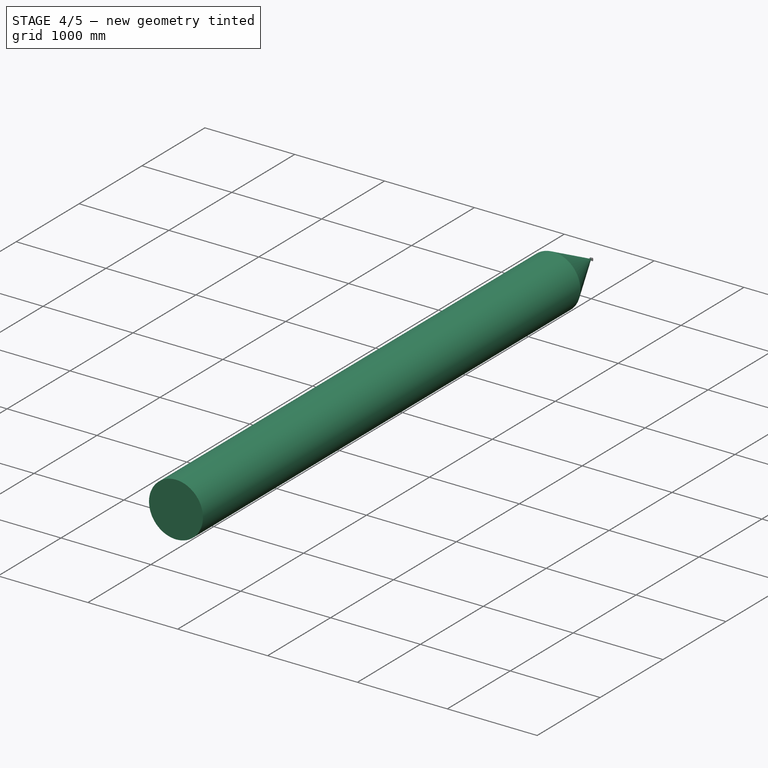
[diagram: stage 4 of 5 — iso view after this stage's code; geometry added in this stage tinted green]
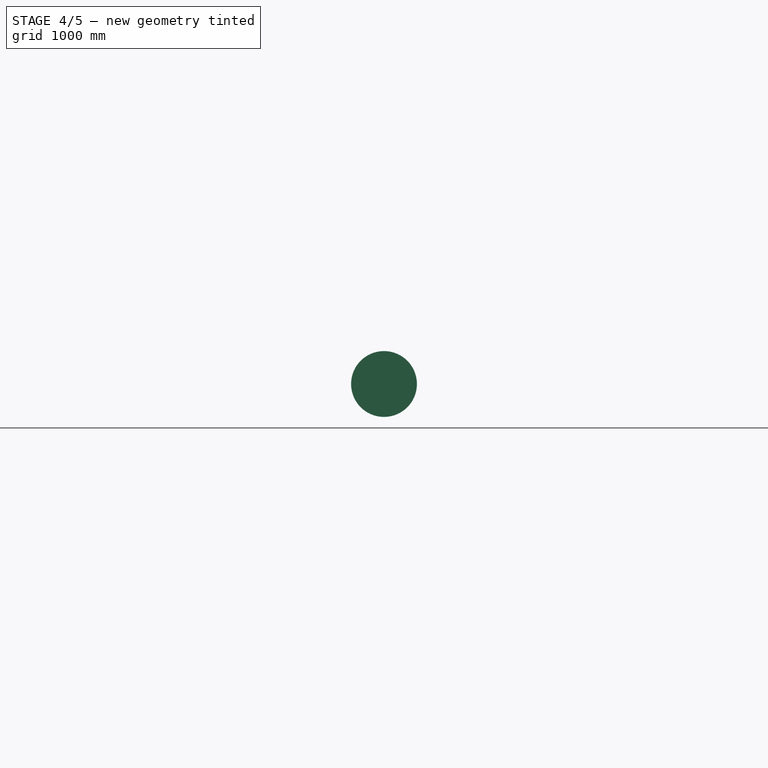
[diagram: stage 4 of 5 — front view after this stage's code; geometry added in this stage tinted green]
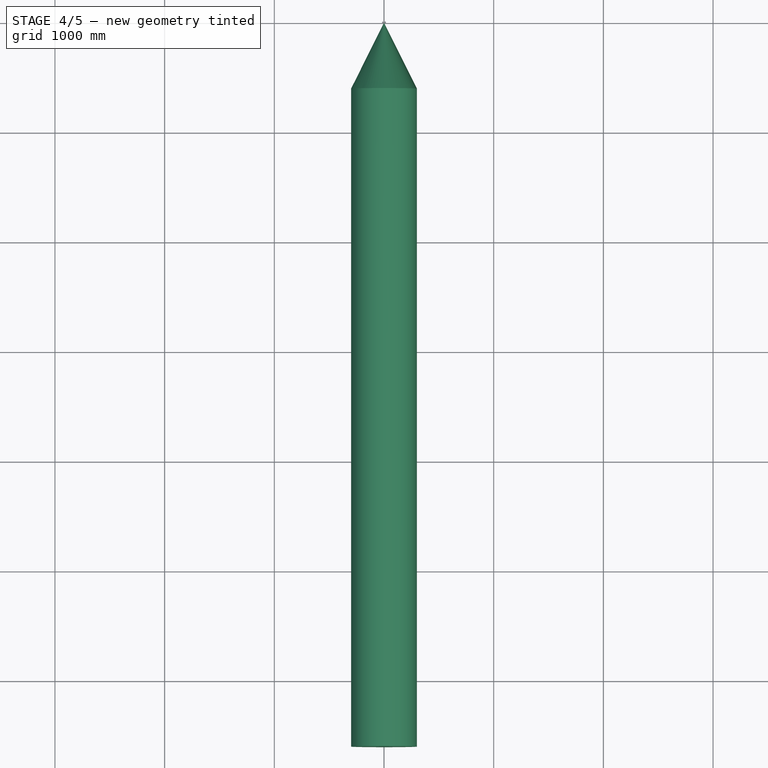
[diagram: stage 4 of 5 — top view after this stage's code; geometry added in this stage tinted green]
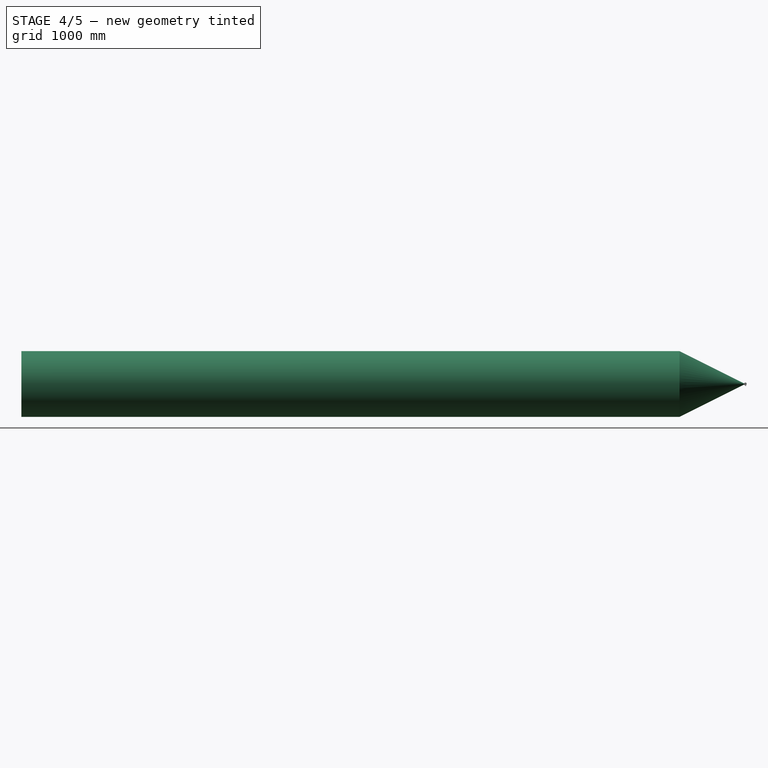
[diagram: stage 4 of 5 — right view after this stage's code; geometry added in this stage tinted green]
FEATURE [PartDesign::Body] Body005  label="anneau"
  AllowCompound = false
  Group = -> [Sketch011,Pad004,Fillet001]
  Origin = -> Origin008
  Placement = pos=(12,0,0) rot=(0,0,1;0rad)
  Tip = -> Fillet001
FEATURE [Sketcher::SketchObject] Sketch012
  ArcFitTolerance = 0
  AttachmentSupport = -> [YZ_Plane009]
  FullyConstrained = true
  MakeInternals = false
  MapMode = 5
  Placement = pos=(0,0,0) rot=(0.57735,0.57735,0.57735;2.0944rad)
  sketch-geometry (5):
    g0: ArcOfCircle CenterX=0 CenterY=0 CenterZ=0 NormalX=0 NormalY=0 NormalZ=1 AngleXU=0 Radius=13.5 StartAngle=4.71239 EndAngle=5.36551
    g1: LineSegment StartX=6 StartY=-18.5 StartZ=0 EndX=10.0836 EndY=-12.5 EndZ=0
    g2: ArcOfCircle CenterX=9 CenterY=-11.7625 CenterZ=0 NormalX=0 NormalY=0 NormalZ=1 AngleXU=0 Radius=1.31071 StartAngle=5.6856 EndAngle=8.5071
    g3: LineSegment StartX=-2.5e-15 StartY=-13.5 StartZ=0 EndX=-2.5e-15 EndY=-18.5 EndZ=0
    g4: LineSegment StartX=-2.5e-15 StartY=-18.5 StartZ=0 EndX=6 EndY=-18.5 EndZ=0
  constraints (14):
    c: Coincident(g0,g-1)
    c: Tangent(g2,g1) = -1.5708
    c: Tangent(g2,g0) = 1.5708
    c: Diameter(g0) = 27
    c: DistanceY(g1,g1) = 6
    c: Coincident(g3,g0)
    c: PointOnObject(g3,g-2)
    c: Vertical(g3)
    c: Coincident(g4,g3)
    c: Coincident(g4,g1)
    c: DistanceY(g3,g3) = 5
    c: DistanceX(g4,g4) = 6
    c: Horizontal(g4)
    c: DistanceX(g3,g2) = 9
FEATURE [PartDesign::Mirrored] Mirrored002
  MirrorPlane = -> Sketch012 [V_Axis]
  Placement = pos=(0,0,0) rot=(1,1,1;2.0944rad)
  Suppressed = false
  TransformMode = 0
FEATURE [PartDesign::Pad] Pad005
  Direction = (1,0,0)
  Length = 17
  Length2 = 10
  Placement = pos=(0,0,0) rot=(1,1,1;2.0944rad)
  Profile = -> Sketch012
  ReferenceAxis = -> Sketch012 [N_Axis]
  Suppressed = false
  Type = 0
FEATURE [Sketcher::SketchObject] Sketch
  ArcFitTolerance = 0
  AttachmentSupport = -> [YZ_Plane011]
  FullyConstrained = true
  MakeInternals = false
  MapMode = 5
  Placement = pos=(0,0,0) rot=(0.57735,0.57735,0.57735;2.0944rad)
  sketch-geometry (4):
    g0: LineSegment StartX=0 StartY=0 StartZ=0 EndX=-6600 EndY=0 EndZ=0
    g1: LineSegment StartX=0 StartY=0 StartZ=0 EndX=-600 EndY=300 EndZ=0
    g2: LineSegment StartX=-600 StartY=300 StartZ=0 EndX=-6600 EndY=300 EndZ=0
    g3: LineSegment StartX=-6600 StartY=300 StartZ=0 EndX=-6600 EndY=0 EndZ=0
  constraints (11):
    c: Coincident(g0,g-1)
    c: PointOnObject(g0,g-1)
    c: Coincident(g1,g0)
    c: Coincident(g2,g1)
    c: Horizontal(g2)
    c: Coincident(g3,g2)
    c: Coincident(g3,g0)
    c: Vertical(g3)
    c: DistanceX(g1) = -600
    c: DistanceY(g1) = 300
    c: DistanceX(g2,g2) = 6000
FEATURE [PartDesign::Revolution] Revolution
  Angle = 360
  Angle2 = 60
  Axis = (0,1,0)
  Base = (0,0,0)
  Placement = pos=(0,0,0) rot=(1,1,1;2.0944rad)
  Profile = -> Sketch
  ReferenceAxis = -> Sketch [H_Axis]
  Suppressed = false
  Type = 0
FEATURE [Part::FeaturePython] Slice001_child0  label="ar_1"  # WARN: FeaturePython — macro-defined, semantics opaque (R4)
  Base = -> Slice001
  FilterType = 1
  Invert = false
  OverrideMaxVal = 0
  WindowFrom = 80
  WindowTo = 100
  items = 0
FEATURE [Part::FeaturePython] Slice001_child1  label="ar_2"  # WARN: FeaturePython — macro-defined, semantics opaque (R4)
  Base = -> Slice001
  FilterType = 1
  Invert = false
  OverrideMaxVal = 0
  WindowFrom = 80
  WindowTo = 100
  items = 1
FEATURE [PartDesign::FeatureBase] Clone
  BaseFeature = -> Slice001_child0
  Suppressed = false
FEATURE [PartDesign::FeatureBase] Clone001
  BaseFeature = -> Slice001_child1
  Suppressed = false
FEATURE [Sketcher::SketchObject] Sketch027
  ArcFitTolerance = 0
  AttachmentOffset = pos=(0,0,-5) rot=(0,0,1;0rad)
  AttachmentSupport = -> [XZ_Plane014]
  FullyConstrained = false
  MakeInternals = false
  MapMode = 5
  Placement = pos=(0,5,-1.1e-15) rot=(1,0,0;1.5708rad)
  sketch-geometry (4):
    g0: LineSegment StartX=-22.0387 StartY=15.2987 StartZ=0 EndX=21.9729 EndY=15.2987 EndZ=0
    g1: LineSegment StartX=21.9729 StartY=15.2987 StartZ=0 EndX=21.9729 EndY=-15.6308 EndZ=0
    g2: LineSegment StartX=21.9729 StartY=-15.6308 StartZ=0 EndX=-22.0387 EndY=-15.6308 EndZ=0
    g3: LineSegment StartX=-22.0387 StartY=-15.6308 StartZ=0 EndX=-22.0387 EndY=15.2987 EndZ=0
  constraints (8):
    c: Coincident(g0,g1)
    c: Coincident(g1,g2)
    c: Coincident(g2,g3)
    c: Coincident(g3,g0)
    c: Horizontal(g0)
    c: Horizontal(g2)
    c: Vertical(g1)
    c: Vertical(g3)
FEATURE [PartDesign::Pocket] Pocket013
  BaseFeature = -> Clone
  Direction = (0,1,-2e-16)
  Length = 0.2
  Length2 = 5
  Profile = -> Sketch027
  ReferenceAxis = -> Sketch027 [N_Axis]
  Reversed = true
  Suppressed = false
  Type = 0
FEATURE [PartDesign::Body] Body008  label="ar_1_min"
  AllowCompound = false
  Group = -> [Clone,Sketch027,Pocket013]
  Origin = -> Origin014
  Tip = -> Pocket013
FEATURE [Sketcher::SketchObject] Sketch028
  ArcFitTolerance = 0
  AttachmentOffset = pos=(0,0,-5) rot=(0,0,1;0rad)
  AttachmentSupport = -> [XZ_Plane015]
  FullyConstrained = false
  MakeInternals = false
  MapMode = 5
  Placement = pos=(0,5,-1.1e-15) rot=(1,0,0;1.5708rad)
  sketch-geometry (4):
    g0: LineSegment StartX=-23.3567 StartY=18.6909 StartZ=0 EndX=23.7795 EndY=18.6909 EndZ=0
    g1: LineSegment StartX=23.7795 StartY=18.6909 StartZ=0 EndX=23.7795 EndY=-14.8637 EndZ=0
    g2: LineSegment StartX=23.7795 StartY=-14.8637 StartZ=0 EndX=-23.3567 EndY=-14.8637 EndZ=0
    g3: LineSegment StartX=-23.3567 StartY=-14.8637 StartZ=0 EndX=-23.3567 EndY=18.6909 EndZ=0
  constraints (8):
    c: Coincident(g0,g1)
    c: Coincident(g1,g2)
    c: Coincident(g2,g3)
    c: Coincident(g3,g0)
    c: Horizontal(g0)
    c: Horizontal(g2)
    c: Vertical(g1)
    c: Vertical(g3)
FEATURE [PartDesign::Pocket] Pocket014
  BaseFeature = -> Clone001
  Direction = (0,1,-2e-16)
  Length = 0.2
  Length2 = 5
  Profile = -> Sketch028
  ReferenceAxis = -> Sketch028 [N_Axis]
  Suppressed = false
  Type = 0
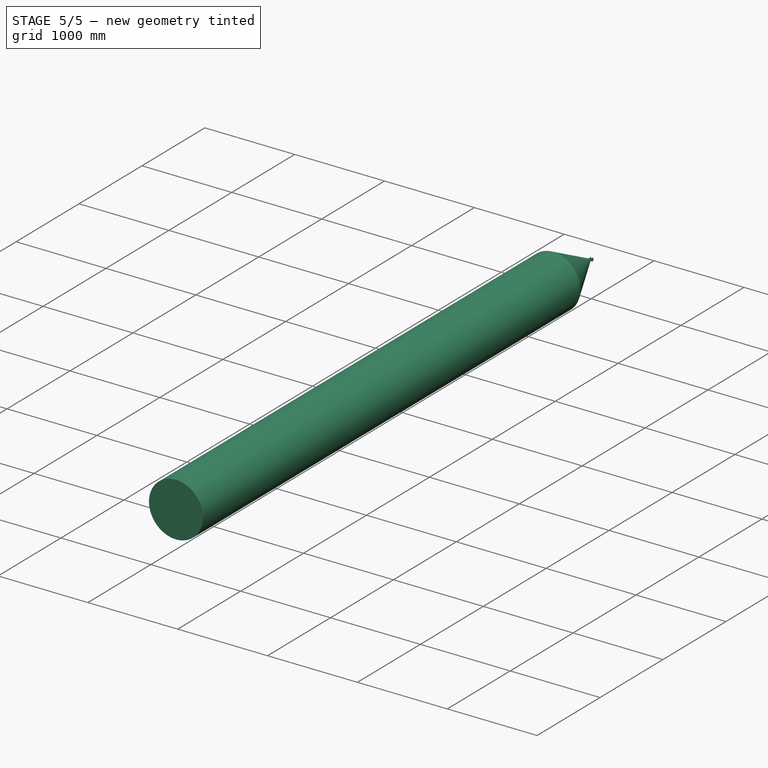
[diagram: stage 5 of 5 — iso view after this stage's code; geometry added in this stage tinted green]
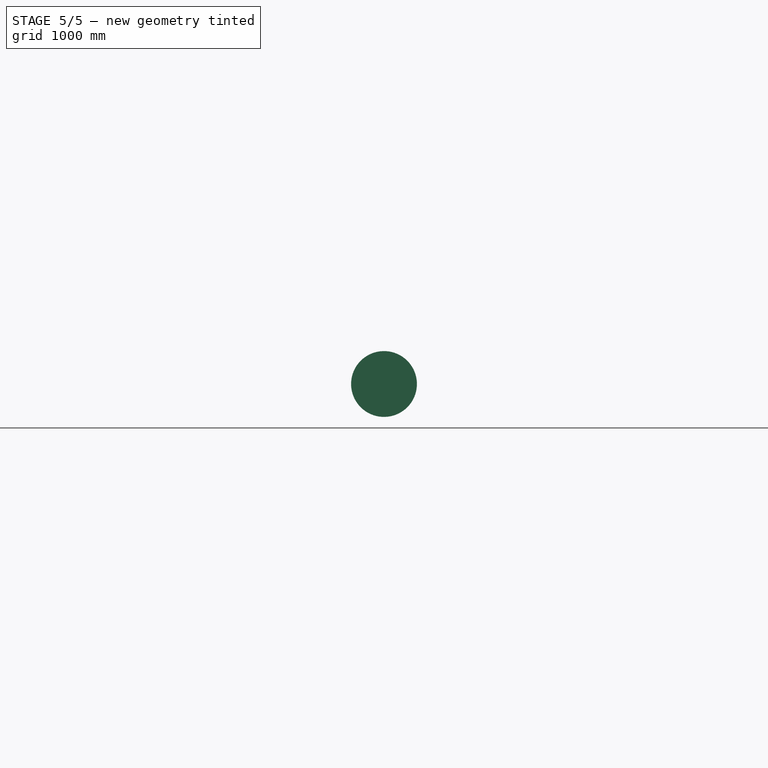
[diagram: stage 5 of 5 — front view after this stage's code; geometry added in this stage tinted green]
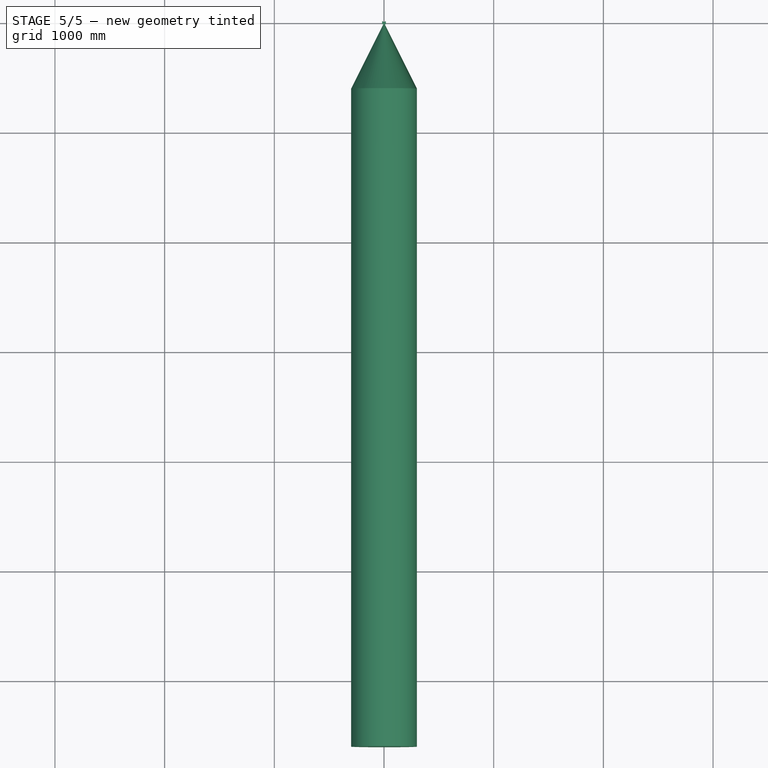
[diagram: stage 5 of 5 — top view after this stage's code; geometry added in this stage tinted green]
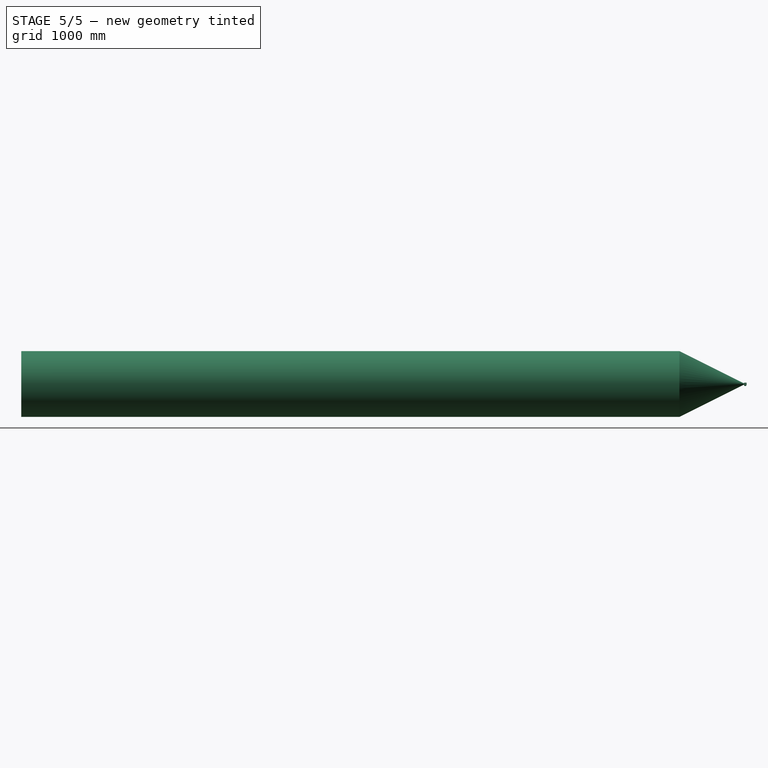
[diagram: stage 5 of 5 — right view after this stage's code; geometry added in this stage tinted green]
FEATURE [Sketcher::SketchObject] Sketch011
  ArcFitTolerance = 0
  AttachmentSupport = -> [YZ_Plane008]
  FullyConstrained = true
  MakeInternals = false
  MapMode = 5
  Placement = pos=(0,0,0) rot=(0.57735,0.57735,0.57735;2.0944rad)
  sketch-geometry (2):
    g0: Circle CenterX=0 CenterY=0 CenterZ=0 NormalX=0 NormalY=0 NormalZ=1 AngleXU=0 Radius=8.8
    g1: Circle CenterX=0 CenterY=0 CenterZ=0 NormalX=0 NormalY=0 NormalZ=1 AngleXU=0 Radius=9.85
  constraints (4):
    c: Coincident(g0,g-1)
    c: Coincident(g1,g0)
    c: Diameter(g0) = 17.6
    c: Diameter(g1) = 19.7
FEATURE [PartDesign::Pad] Pad004
  Direction = (1,0,0)
  Length = 5
  Length2 = 10
  Placement = pos=(0,0,0) rot=(1,1,1;2.0944rad)
  Profile = -> Sketch011
  ReferenceAxis = -> Sketch011 [N_Axis]
  Suppressed = false
  Type = 0
FEATURE [PartDesign::Fillet] Fillet001
  Base = -> Pad004 [Edge3]
  BaseFeature = -> Pad004
  Placement = pos=(0,0,0) rot=(1,1,1;2.0944rad)
  Radius = 0.5
  SupportTransform = false
  Suppressed = false
  UseAllEdges = false
FEATURE [Sketcher::SketchObject] Sketch013
  ArcFitTolerance = 0
  AttachmentOffset = pos=(0,0,17) rot=(0,0,1;0rad)
  AttachmentSupport = -> [YZ_Plane009]
  FullyConstrained = true
  MakeInternals = false
  MapMode = 5
  Placement = pos=(17,0,0) rot=(0.57735,0.57735,0.57735;2.0944rad)
  sketch-geometry (11):
    g0: ArcOfCircle CenterX=0 CenterY=0 CenterZ=0 NormalX=0 NormalY=0 NormalZ=1 AngleXU=0 Radius=10.15 StartAngle=4.71239 EndAngle=6.80678
    g1: ArcOfCircle CenterX=0 CenterY=0 CenterZ=0 NormalX=0 NormalY=0 NormalZ=1 AngleXU=0 Radius=13 StartAngle=5.98938 EndAngle=6.80678
    g2: ArcOfCircle CenterX=12.7739 CenterY=7.375 CenterZ=0 NormalX=0 NormalY=0 NormalZ=1 AngleXU=0 Radius=4.6 StartAngle=1.5708 EndAngle=3.66519
    g3: ArcOfCircle CenterX=12.7739 CenterY=7.375 CenterZ=0 NormalX=0 NormalY=0 NormalZ=1 AngleXU=0 Radius=1.75 StartAngle=1.5708 EndAngle=3.66519
    g4: ArcOfCircle CenterX=12.7739 CenterY=10.55 CenterZ=0 NormalX=0 NormalY=0 NormalZ=1 AngleXU=0 Radius=1.425 StartAngle=4.71239 EndAngle=7.85398
    g5: LineSegment StartX=-1.9e-15 StartY=-10.15 StartZ=0 EndX=0 EndY=-14.15 EndZ=0
    g6: LineSegment StartX=12.4429 StartY=-3.76473 StartZ=0 EndX=9.8 EndY=-12.5 EndZ=0
    g7: LineSegment [constr] StartX=0 StartY=0 StartZ=0 EndX=11.2583 EndY=6.5 EndZ=0
    g8: LineSegment [constr] StartX=12.7739 StartY=11.975 StartZ=0 EndX=12.7739 EndY=9.125 EndZ=0
    g9: LineSegment [constr] StartX=8.79016 StartY=5.075 StartZ=0 EndX=11.2583 EndY=6.5 EndZ=0
    g10: LineSegment StartX=9.8 StartY=-12.5 StartZ=0 EndX=0 EndY=-14.15 EndZ=0
  constraints (28):
    c: Coincident(g0,g-1)
    c: Coincident(g1,g0)
    c: Tangent(g4,g2) = -1.5708
    c: Tangent(g2,g0) = 1.5708
    c: Tangent(g4,g3) = 1.5708
    c: Tangent(g3,g1) = 1.5708
    c: Diameter(g0) = 20.3
    c: Diameter(g1) = 26
    c: PointOnObject(g0,g-2)
    c: Coincident(g5,g0)
    c: PointOnObject(g5,g-2)
    c: Coincident(g7,g0)
    c: Coincident(g7,g1)
    c: PointOnObject(g0,g7)
    c: Coincident(g8,g2)
    c: Coincident(g8,g3)
    c: Coincident(g9,g0)
    c: Equal(g9,g8)
    c: Coincident(g9,g1)
    c: Angle(g-1,g7) = 0.523599
    c: Vertical(g8)
    c: Diameter(g3) = 3.5
    c: Tangent(g6,g1) = 1.5708
    c: Coincident(g10,g6)
    c: Coincident(g10,g5)
    c: DistanceY(g5,g5) = 4
    c: DistanceX(g6) = 9.8
    c: DistanceY(g6) = -12.5
FEATURE [PartDesign::Pad] Pad006
  BaseFeature = -> Pad005
  Direction = (1,0,0)
  Length = 4.5
  Length2 = 10
  Placement = pos=(0,0,0) rot=(1,1,1;2.0944rad)
  Profile = -> Sketch013
  ReferenceAxis = -> Sketch013 [N_Axis]
  Refine = true
  Reversed = true
  Suppressed = false
  Type = 0
FEATURE [Sketcher::SketchObject] Sketch014
  ArcFitTolerance = 0
  AttachmentSupport = -> [XY_Plane009]
  FullyConstrained = true
  MakeInternals = false
  MapMode = 5
  sketch-geometry (1):
    g0: Circle CenterX=0 CenterY=0 CenterZ=0 NormalX=0 NormalY=0 NormalZ=1 AngleXU=0 Radius=2.75
  constraints (2):
    c: Coincident(g0,g-1)
    c: Diameter(g0) = 5.5
FEATURE [PartDesign::Pocket] Pocket005
  BaseFeature = -> Pad006
  Direction = (0,0,-1)
  Length = 5
  Length2 = 5
  Placement = pos=(0,0,0) rot=(1,1,1;2.0944rad)
  Profile = -> Sketch014
  ReferenceAxis = -> Sketch014 [N_Axis]
  Suppressed = false
  Type = 1
FEATURE [Sketcher::SketchObject] Sketch015
  ArcFitTolerance = 0
  AttachmentSupport = -> [XY_Plane009]
  FullyConstrained = true
  MakeInternals = false
  MapMode = 5
  sketch-geometry (1):
    g0: Circle CenterX=0 CenterY=0 CenterZ=0 NormalX=0 NormalY=0 NormalZ=1 AngleXU=0 Radius=5
  constraints (2):
    c: Coincident(g0,g-1)
    c: Diameter(g0) = 10
FEATURE [PartDesign::Pocket] Pocket006
  BaseFeature = -> Pocket005
  Direction = (0,0,-1)
  Length = 16.5
  Length2 = 5
  Placement = pos=(0,0,0) rot=(1,1,1;2.0944rad)
  Profile = -> Sketch015
  ReferenceAxis = -> Sketch015 [N_Axis]
  Suppressed = false
  Type = 0
FEATURE [PartDesign::MultiTransform] MultiTransform002
  BaseFeature = -> Pocket006
  Originals = -> [Pad005,Pad006,Pocket005,Pocket006]
  Placement = pos=(0,0,0) rot=(1,1,1;2.0944rad)
  Refine = true
  Suppressed = false
  TransformMode = 0
  Transformations = -> [Mirrored002,Mirrored003]
FEATURE [Sketcher::SketchObject] Sketch023
  ArcFitTolerance = 0
  AttachmentOffset = pos=(0,0,17) rot=(0,0,1;0rad)
  AttachmentSupport = -> [YZ_Plane009]
  FullyConstrained = true
  MakeInternals = false
  MapMode = 5
  Placement = pos=(17,0,0) rot=(0.57735,0.57735,0.57735;2.0944rad)
  sketch-geometry (4):
    g0: LineSegment StartX=-0.5 StartY=-20 StartZ=0 EndX=0.5 EndY=-20 EndZ=0
    g1: LineSegment StartX=0.5 StartY=-20 StartZ=0 EndX=0.5 EndY=-10 EndZ=0
    g2: LineSegment StartX=0.5 StartY=-10 StartZ=0 EndX=-0.5 EndY=-10 EndZ=0
    g3: LineSegment StartX=-0.5 StartY=-10 StartZ=0 EndX=-0.5 EndY=-20 EndZ=0
  constraints (11):
    c: Coincident(g0,g1)
    c: Coincident(g1,g2)
    c: Coincident(g2,g3)
    c: Coincident(g3,g0)
    c: Horizontal(g0)
    c: Vertical(g1)
    c: Vertical(g3)
    c: Symmetric(g1,g2,g-2)
    c: DistanceX(g2,g2) = 1
    c: DistanceY(g1,g-1) = 10
    c: DistanceY(g1,g1) = 10
FEATURE [PartDesign::Pocket] Pocket011
  BaseFeature = -> MultiTransform002
  Direction = (-1,0,0)
  Length = 0.2
  Length2 = 5
  Placement = pos=(0,0,0) rot=(1,1,1;2.0944rad)
  Profile = -> Sketch023
  ReferenceAxis = -> Sketch023 [N_Axis]
  Suppressed = false
  Type = 0
FEATURE [PartDesign::Mirrored] Mirrored006
  BaseFeature = -> Pocket011
  MirrorPlane = -> YZ_Plane009
  Originals = -> [Pocket011]
  Placement = pos=(0,0,0) rot=(1,1,1;2.0944rad)
  Suppressed = false
  TransformMode = 0
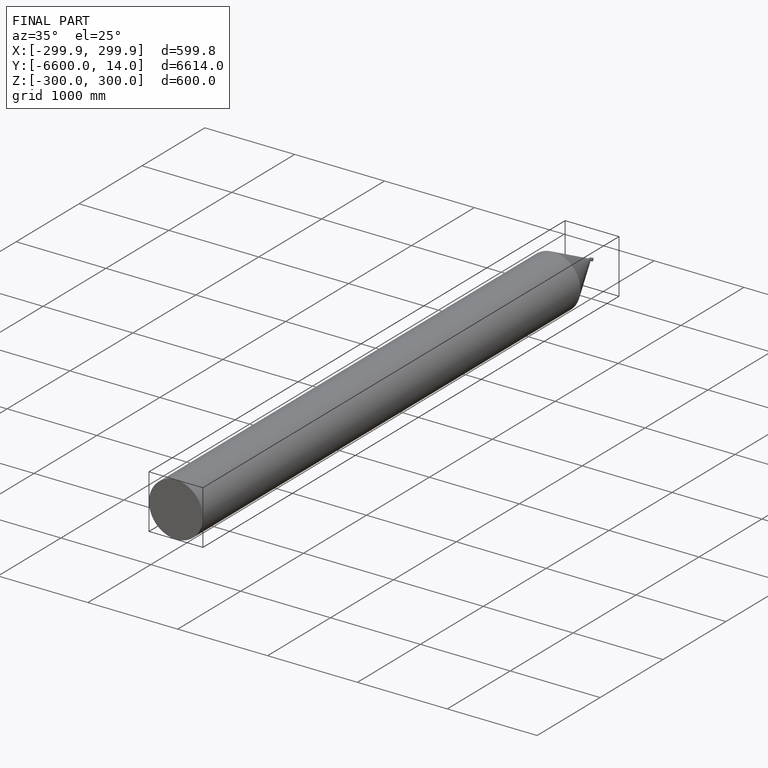
[diagram: finished part — iso view with bounding-box wireframe]
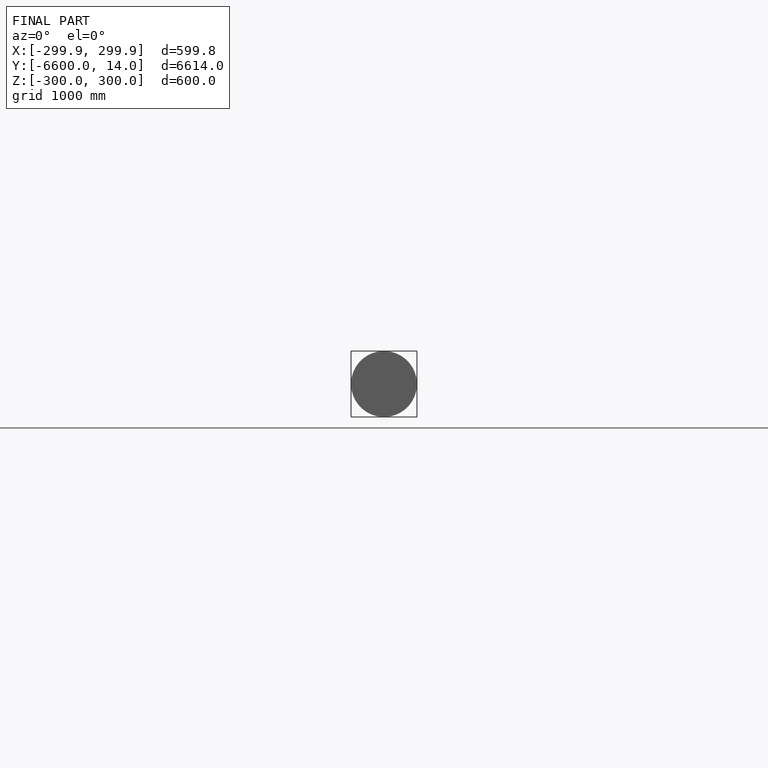
[diagram: finished part — front view with bounding-box wireframe]
